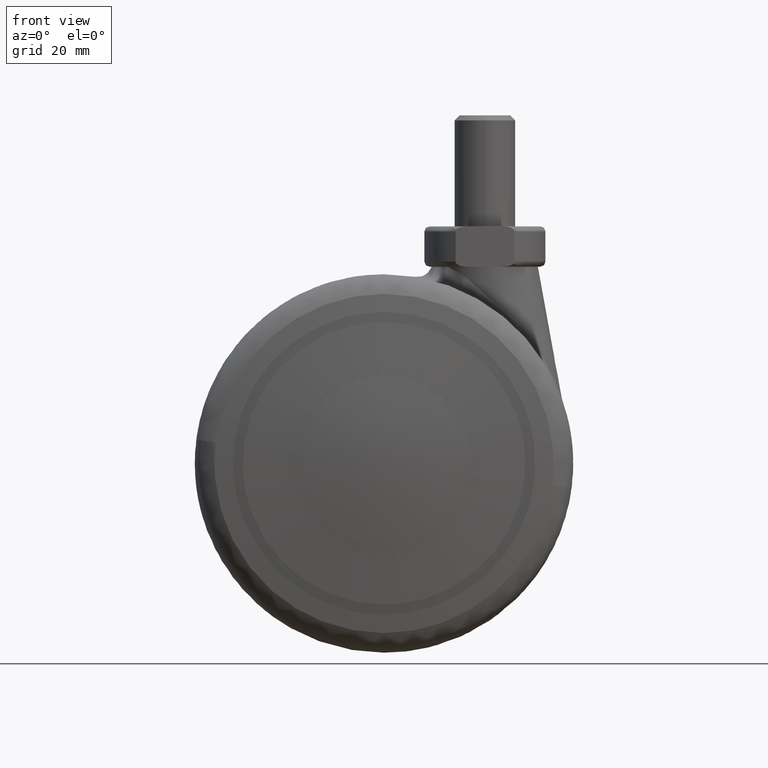
[diagram: clean part render]
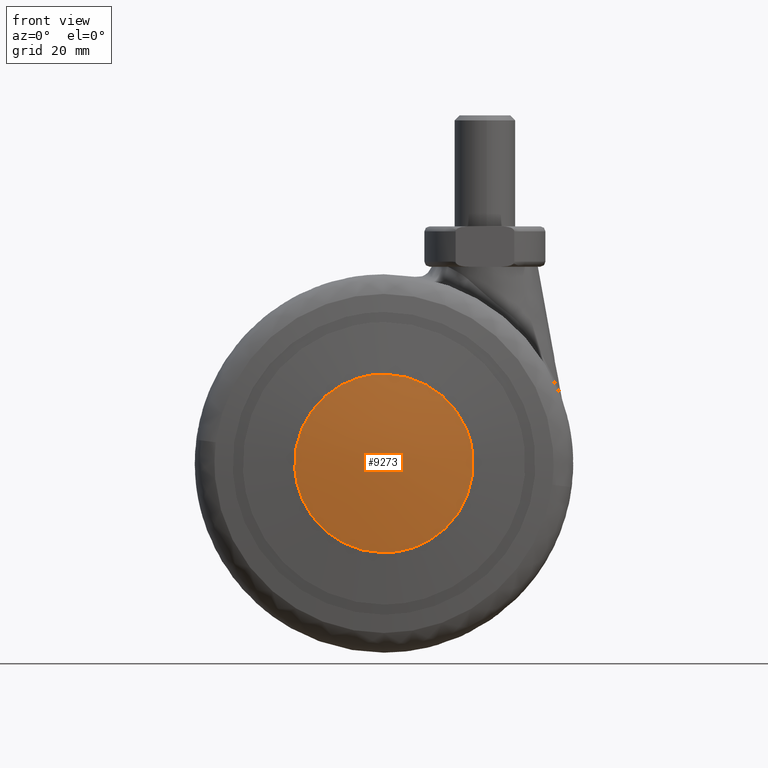
[diagram: same view with one face highlighted and labeled with its STEP entity id]
A machine part, front view. The second image highlights one B-rep face of the part: STEP entity #9273.
In plain terms, the highlighted face is a freeform B-spline surface patch.
Its self-contained STEP definition (entity closure, byte-faithful):
#7073=CARTESIAN_POINT('',(17.576268641133389,-30.499999552072250,2.089205956407857));
#7074=VERTEX_POINT('',#7073);
#7080=CARTESIAN_POINT('',(0.0,-30.499999552072250,-17.700000874265299));
#7081=VERTEX_POINT('',#7080);
#7082=CARTESIAN_POINT('',(17.576268641133392,-30.499999552072250,2.089205956407858));
#7083=CARTESIAN_POINT('',(17.700000874265303,-30.499999552072246,1.048266969687604));
#7084=CARTESIAN_POINT('',(17.700000874265299,-30.499999552072250,0.0));
#7085=CARTESIAN_POINT('',(17.700000874265296,-30.499999552072254,-17.700000874265296));
#7086=CARTESIAN_POINT('',(0.0,-30.499999552072250,-17.700000874265299));
#7094=(BOUNDED_CURVE()B_SPLINE_CURVE(2,(#7082,#7083,#7084,#7085,#7086),.UNSPECIFIED.,.F.,.U.)B_SPLINE_CURVE_WITH_KNOTS((3,2,3),(0.229562473514289,0.250000000000000,0.500000000000000),.UNSPECIFIED.)CURVE()GEOMETRIC_REPRESENTATION_ITEM()RATIONAL_B_SPLINE_CURVE((0.956026754185230,0.976055948332060,1.0,0.707106781186547,1.0))REPRESENTATION_ITEM(''));
#7095=EDGE_CURVE('',#7074,#7081,#7094,.T.);
#7097=CARTESIAN_POINT('',(-17.666985956693129,-30.499999552072250,-1.080559151359596));
#7098=VERTEX_POINT('',#7097);
#7099=CARTESIAN_POINT('',(0.0,-30.499999552072250,-17.700000874265299));
#7100=CARTESIAN_POINT('',(-16.650498206494845,-30.499999552072254,-17.700000874265310));
#7101=CARTESIAN_POINT('',(-17.666985956693122,-30.499999552072254,-1.080559151359595));
#7109=(BOUNDED_CURVE()B_SPLINE_CURVE(2,(#7099,#7100,#7101),.UNSPECIFIED.,.F.,.U.)B_SPLINE_CURVE_WITH_KNOTS((3,3),(0.500000000000000,0.739332962240286),.UNSPECIFIED.)CURVE()GEOMETRIC_REPRESENTATION_ITEM()RATIONAL_B_SPLINE_CURVE((1.0,0.719603993285136,0.976072041669597))REPRESENTATION_ITEM(''));
#7110=EDGE_CURVE('',#7081,#7098,#7109,.T.);
#7184=CARTESIAN_POINT('',(0.0,-30.499999552072250,17.700000874265299));
#7185=VERTEX_POINT('',#7184);
#7186=CARTESIAN_POINT('',(-17.666985956693129,-30.499999552072257,-1.080559151359596));
#7187=CARTESIAN_POINT('',(-17.700000874265299,-30.499999552072246,-0.540783937182594));
#7188=CARTESIAN_POINT('',(-17.700000874265299,-30.499999552072250,0.0));
#7189=CARTESIAN_POINT('',(-17.700000874265296,-30.499999552072254,17.700000874265296));
#7190=CARTESIAN_POINT('',(0.0,-30.499999552072250,17.700000874265299));
#7198=(BOUNDED_CURVE()B_SPLINE_CURVE(2,(#7186,#7187,#7188,#7189,#7190),.UNSPECIFIED.,.F.,.U.)B_SPLINE_CURVE_WITH_KNOTS((3,2,3),(0.739332962240286,0.750000000000000,1.0),.UNSPECIFIED.)CURVE()GEOMETRIC_REPRESENTATION_ITEM()RATIONAL_B_SPLINE_CURVE((0.976072041669597,0.987502787901411,1.0,0.707106781186547,1.0))REPRESENTATION_ITEM(''));
#7199=EDGE_CURVE('',#7098,#7185,#7198,.T.);
#7201=CARTESIAN_POINT('',(0.0,-30.499999552072250,17.700000874265299));
#7202=CARTESIAN_POINT('',(15.720689885712446,-30.499999552072261,17.700000874265307));
#7203=CARTESIAN_POINT('',(17.576268641133392,-30.499999552072250,2.089205956407858));
#7211=(BOUNDED_CURVE()B_SPLINE_CURVE(2,(#7201,#7202,#7203),.UNSPECIFIED.,.F.,.U.)B_SPLINE_CURVE_WITH_KNOTS((3,3),(0.0,0.229562473514289),.UNSPECIFIED.)CURVE()GEOMETRIC_REPRESENTATION_ITEM()RATIONAL_B_SPLINE_CURVE((1.0,0.731050832854487,0.956026754185230))REPRESENTATION_ITEM(''));
#7212=EDGE_CURVE('',#7185,#7074,#7211,.T.);
#9243=CARTESIAN_POINT('',(-19.317830197711707,-28.661285594593348,-19.318258914549812));
#9244=CARTESIAN_POINT('',(-9.722744867679793,-30.226471714672623,-19.445921285320900));
#9245=CARTESIAN_POINT('',(9.722799782384213,-30.226471714672623,-19.445921285320900));
#9246=CARTESIAN_POINT('',(19.317937873487203,-28.661268030068847,-19.318257481922220));
#9247=CARTESIAN_POINT('',(-19.445495439115664,-30.226541646305286,-9.722963494601782));
#9248=CARTESIAN_POINT('',(-9.787426761085078,-31.812552999999951,-9.787643971538374));
#9249=CARTESIAN_POINT('',(9.787482041117098,-31.812552999999951,-9.787643971538374));
#9250=CARTESIAN_POINT('',(19.445603816955074,-30.226523848857234,-9.722962768788932));
#9251=CARTESIAN_POINT('',(-19.445495439115664,-30.226541646305286,9.722962005082527));
#9252=CARTESIAN_POINT('',(-9.787426761085078,-31.812552999999951,9.787642472110330));
#9253=CARTESIAN_POINT('',(9.787482041117098,-31.812552999999951,9.787642472110330));
#9254=CARTESIAN_POINT('',(19.445603816955074,-30.226523848857234,9.722961279269791));
#9255=CARTESIAN_POINT('',(-19.317830236570515,-28.661286071026701,19.318255993929199));
#9256=CARTESIAN_POINT('',(-9.722744887366840,-30.226472197423700,19.445918345658217));
#9257=CARTESIAN_POINT('',(9.722799802071371,-30.226472197423700,19.445918345658217));
#9258=CARTESIAN_POINT('',(19.317937912346224,-28.661268506502125,19.318254561301817));
#9266=(BOUNDED_SURFACE()B_SPLINE_SURFACE(2,2,((#9243,#9247,#9251,#9255),(#9244,#9248,#9252,#9256),(#9245,#9249,#9253,#9257),(#9246,#9250,#9254,#9258)),.UNSPECIFIED.,.F.,.F.,.U.)B_SPLINE_SURFACE_WITH_KNOTS((3,1,3),(3,1,3),(36.098124809455868,55.141904456432421,74.185791663932804),(36.097702174568177,55.141904456432428,74.186103820800781),.UNSPECIFIED.)GEOMETRIC_REPRESENTATION_ITEM()RATIONAL_B_SPLINE_SURFACE(((1.013304978966472,1.006652341847473,1.006652341847473,1.013304976928157),(1.006652637118999,1.0,1.0,1.006652635080684),(1.006652637118999,1.0,1.0,1.006652635080684),(1.013305054112415,1.006652416993416,1.006652416993416,1.013305052074100)))REPRESENTATION_ITEM('')SURFACE());
#9267=ORIENTED_EDGE('',*,*,#7199,.F.);
#9268=ORIENTED_EDGE('',*,*,#7110,.F.);
#9269=ORIENTED_EDGE('',*,*,#7095,.F.);
#9270=ORIENTED_EDGE('',*,*,#7212,.F.);
#9271=EDGE_LOOP('',(#9267,#9268,#9269,#9270));
#9272=FACE_OUTER_BOUND('',#9271,.T.);
#9273=ADVANCED_FACE('',(#9272),#9266,.T.);